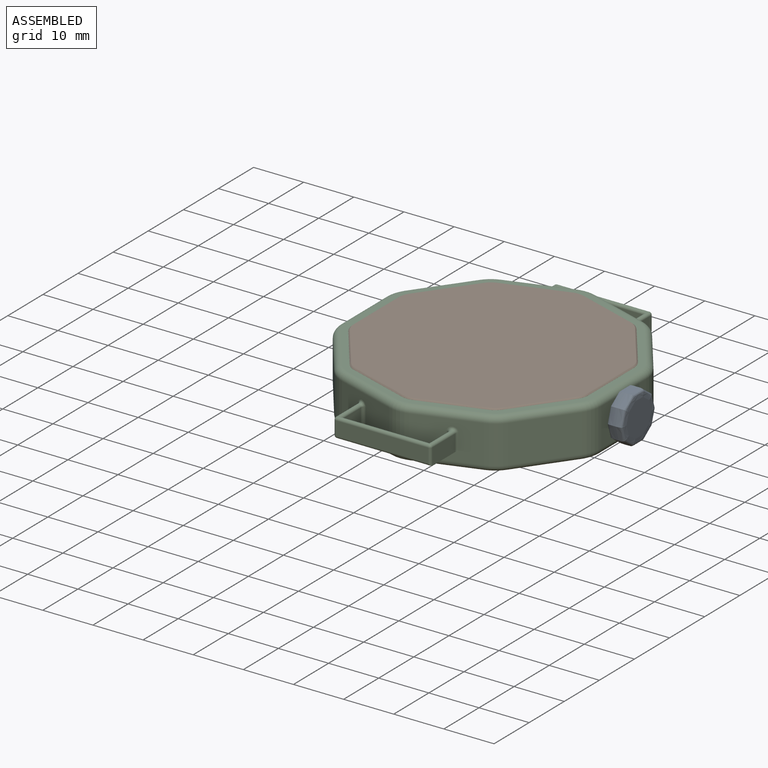
[diagram: assembled view]
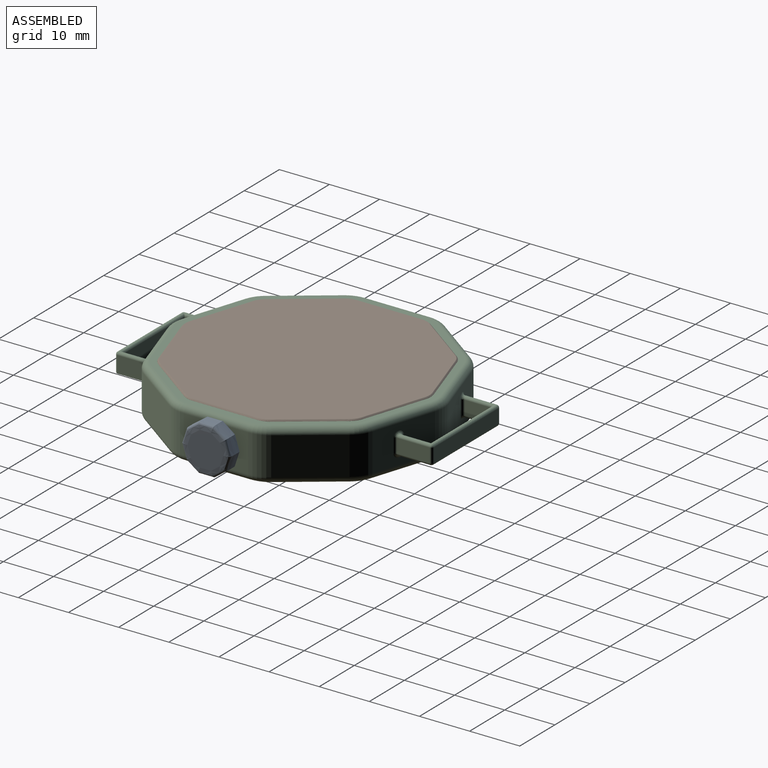
[diagram: assembled view, second angle]
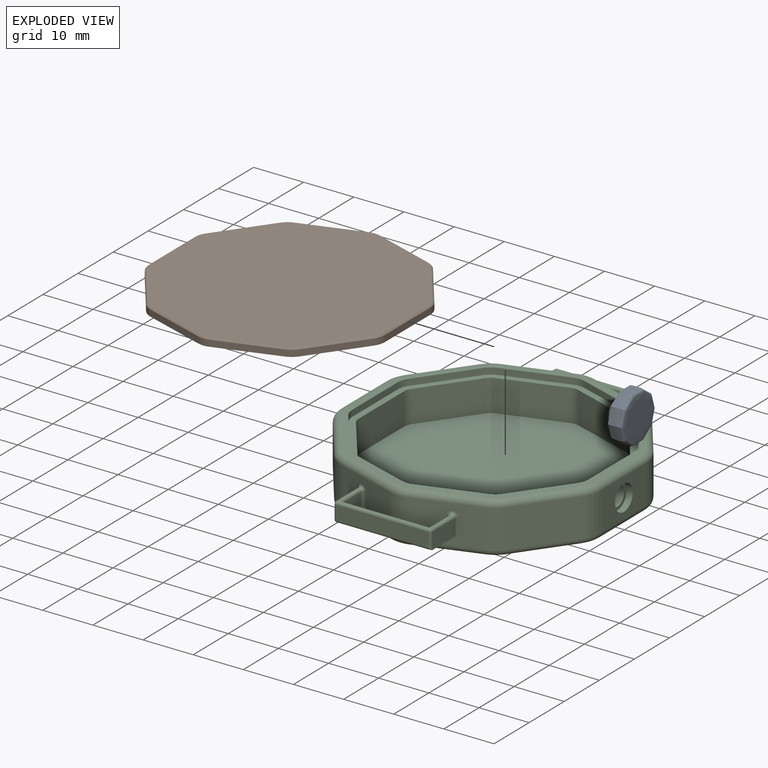
[diagram: exploded view]
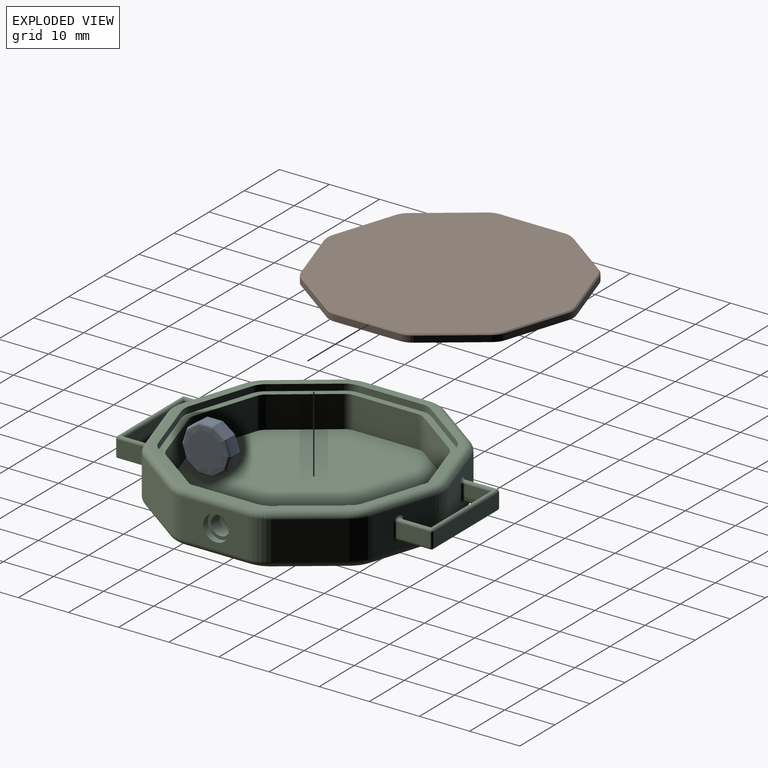
[diagram: exploded view, second angle]
ASSEMBLY  parts=3 mates=2
PART A: 34 faces, bbox 9.3x9.8x4.3 mm
  f0: plane 2.46x1.78mm, normal (0.81,0.59,0), area 1.5mm2, adj f1,f9,f19,f29
  f1: plane 2.89x0.94mm, normal (0.31,0.95,0), area 1.5mm2, adj f0,f2,f17,f27
  f2: plane 2.89x0.94mm, normal (-0.31,0.95,0), area 1.5mm2, adj f1,f3,f15,f25
  f3: plane 2.46x1.78mm, normal (-0.81,0.59,0), area 1.5mm2, adj f2,f4,f14,f24
  f4: plane 3.04x0.48mm, normal (-1,0,0), area 1.5mm2, adj f3,f5,f16,f26
  f5: plane 2.46x1.78mm, normal (-0.81,-0.59,0), area 1.5mm2, adj f4,f6,f18,f28
  f6: plane 2.89x0.94mm, normal (-0.31,-0.95,0), area 1.5mm2, adj f5,f7,f20,f30
  f7: plane 2.89x0.94mm, normal (0.31,-0.95,0), area 1.5mm2, adj f6,f8,f22,f32
  f8: plane 2.46x1.78mm, normal (0.81,-0.59,0), area 1.5mm2, adj f7,f9,f23,f33
  f9: plane 3.04x0.48mm, normal (1,0,0), area 1.5mm2, adj f0,f8,f21,f31
  f10: plane 7.16x6.8mm, normal (0,0,1), area 37.6mm2, adj f14,f15,f16,f17,f18,f19,f20,f21
  f11: plane 7.16x6.8mm, normal (0,0,-1), area 17.4mm2, adj f12,f24,f25,f26,f27,f28,f29,f30
  f12: cylinder r=2.54mm len=5.07mm, axis (0,0,1), area 20.2mm2, adj f11,f13
  f13: plane 5.07x5.07mm, normal (0,0,-1), area 20.2mm2, adj f12
  f14: bspline ~3.2x2.81mm, area 5.9mm2, adj f3,f10,f15,f16
  f15: bspline ~3.28x2.15mm, area 5.9mm2, adj f2,f10,f14,f17
  f16: bspline ~3.34x1.27mm, area 5.9mm2, adj f4,f10,f14,f18
  f17: bspline ~3.28x2.15mm, area 5.9mm2, adj f1,f10,f15,f19
  f18: bspline ~3.2x2.81mm, area 5.9mm2, adj f5,f10,f16,f20
  f19: bspline ~3.2x2.81mm, area 5.9mm2, adj f0,f10,f17,f21
  f20: bspline ~3.28x2.15mm, area 5.9mm2, adj f6,f10,f18,f22
  f21: bspline ~3.34x1.27mm, area 5.9mm2, adj f9,f10,f19,f23
  f22: bspline ~3.28x2.15mm, area 5.9mm2, adj f7,f10,f20,f23
  f23: bspline ~3.2x2.81mm, area 5.9mm2, adj f8,f10,f21,f22
  f24: bspline ~3.2x2.81mm, area 6.1mm2, adj f3,f11,f25,f26
  f25: bspline ~3.28x2.15mm, area 6.1mm2, adj f2,f11,f24,f27
  f26: bspline ~3.34x1.27mm, area 6.1mm2, adj f4,f11,f24,f28
  f27: bspline ~3.28x2.15mm, area 6.1mm2, adj f1,f11,f25,f29
  f28: bspline ~3.2x2.81mm, area 6.1mm2, adj f5,f11,f26,f30
  f29: bspline ~3.2x2.81mm, area 6.1mm2, adj f0,f11,f27,f31
  f30: bspline ~3.28x2.15mm, area 6.1mm2, adj f6,f11,f28,f32
  f31: bspline ~3.34x1.27mm, area 6.1mm2, adj f9,f11,f29,f33
  f32: bspline ~3.28x2.15mm, area 6.1mm2, adj f7,f11,f30,f33
  f33: bspline ~3.2x2.81mm, area 6.1mm2, adj f8,f11,f31,f32
PART B: 42 faces, bbox 47.1x49.3x1.5 mm
  f0: plane 10.38x7.54mm, normal (0.81,-0.59,0), area 16.3mm2, adj f9,f10,f20,f40
  f1: plane 12.2x3.96mm, normal (0.31,-0.95,0), area 16.3mm2, adj f10,f11,f20,f39
  f2: plane 12.2x3.96mm, normal (-0.31,-0.95,0), area 16.3mm2, adj f11,f12,f20,f35
  f3: plane 10.38x7.54mm, normal (-0.81,-0.59,0), area 16.3mm2, adj f12,f13,f20,f31
  f4: plane 12.83x1.27mm, normal (-1,0,0), area 16.3mm2, adj f13,f14,f20,f27
  f5: plane 10.38x7.54mm, normal (-0.81,0.59,0), area 16.3mm2, adj f14,f15,f20,f23
  f6: plane 12.2x3.96mm, normal (-0.31,0.95,0), area 16.3mm2, adj f15,f16,f20,f24
  f7: plane 12.2x3.96mm, normal (0.31,0.95,0), area 16.3mm2, adj f16,f17,f20,f28
  f8: plane 10.38x7.54mm, normal (0.81,0.59,0), area 16.3mm2, adj f17,f18,f20,f32
  f9: cylinder r=3.81mm len=2.24mm, axis (0,0,1), area 3mm2, adj f0,f19,f20,f38
  f10: cylinder r=3.81mm len=1.91mm, axis (0,0,1), area 3mm2, adj f0,f1,f20,f41
  f11: cylinder r=3.81mm len=2.35mm, axis (0,0,1), area 3mm2, adj f1,f2,f20,f37
  f12: cylinder r=3.81mm len=1.91mm, axis (0,0,1), area 3mm2, adj f2,f3,f20,f33
  f13: cylinder r=3.81mm len=2.24mm, axis (0,0,1), area 3mm2, adj f3,f4,f20,f29
  f14: cylinder r=3.81mm len=2.24mm, axis (0,0,1), area 3mm2, adj f4,f5,f20,f25
  f15: cylinder r=3.81mm len=1.91mm, axis (0,0,1), area 3mm2, adj f5,f6,f20,f22
  f16: cylinder r=3.81mm len=2.35mm, axis (0,0,1), area 3mm2, adj f6,f7,f20,f26
  f17: cylinder r=3.81mm len=1.91mm, axis (0,0,1), area 3mm2, adj f7,f8,f20,f30
  f18: cylinder r=3.81mm len=2.24mm, axis (0,0,1), area 3mm2, adj f8,f19,f20,f34
  f19: plane 12.83x1.27mm, normal (1,0,0), area 16.3mm2, adj f9,f18,f20,f36
  f20: plane 49.13x47.1mm, normal (0,0,-1), area 1800.4mm2, adj f0,f1,f2,f3,f4,f5,f6,f7
  f21: plane 48.78x46.61mm, normal (0,0,1), area 1761.9mm2, adj f22,f23,f24,f25,f26,f27,f28,f29
  f22: bspline ~1.98x1.53mm, area 0.8mm2, adj f15,f21,f23,f24
  f23: bspline ~10.53x7.75mm, area 4.7mm2, adj f5,f21,f22,f25
  f24: bspline ~12.28x4.21mm, area 4.7mm2, adj f6,f21,f22,f26
  f25: bspline ~2.24x0.93mm, area 0.8mm2, adj f14,f21,f23,f27
  f26: bspline ~2.35x0.49mm, area 0.8mm2, adj f16,f21,f24,f28
  f27: bspline ~12.83x0.25mm, area 4.7mm2, adj f4,f21,f25,f29
  f28: bspline ~12.28x4.21mm, area 4.7mm2, adj f7,f21,f26,f30
  f29: bspline ~2.24x0.93mm, area 0.8mm2, adj f13,f21,f27,f31
  f30: bspline ~1.98x1.53mm, area 0.8mm2, adj f17,f21,f28,f32
  f31: bspline ~10.53x7.75mm, area 4.7mm2, adj f3,f21,f29,f33
  f32: bspline ~10.53x7.75mm, area 4.7mm2, adj f8,f21,f30,f34
  f33: bspline ~1.98x1.53mm, area 0.8mm2, adj f12,f21,f31,f35
  f34: bspline ~2.24x0.93mm, area 0.8mm2, adj f18,f21,f32,f36
  f35: bspline ~12.28x4.21mm, area 4.7mm2, adj f2,f21,f33,f37
  f36: bspline ~12.83x0.25mm, area 4.7mm2, adj f19,f21,f34,f38
  f37: bspline ~2.35x0.49mm, area 0.8mm2, adj f11,f21,f35,f39
  f38: bspline ~2.24x0.93mm, area 0.8mm2, adj f9,f21,f36,f40
  f39: bspline ~12.28x4.21mm, area 4.7mm2, adj f1,f21,f37,f41
  f40: bspline ~10.53x7.75mm, area 4.7mm2, adj f0,f21,f38,f41
  f41: bspline ~1.98x1.53mm, area 0.8mm2, adj f10,f21,f39,f40
PART C: 158 faces, bbox 53.2x63.3x10.2 mm
  f0: plane 12.2x7.62mm, normal (-0.31,0.95,0), area 88.4mm2, adj f13,f14,f36,f55,f138,f139,f140,f141
  f1: plane 12.2x7.62mm, normal (0.31,0.95,0), area 88.4mm2, adj f12,f13,f40,f59,f152,f153,f156,f157
  f2: plane 10.38x7.62mm, normal (0.81,0.59,0), area 97.7mm2, adj f12,f21,f39,f60
  f3: plane 10.38x7.62mm, normal (-0.81,0.59,0), area 97.7mm2, adj f14,f15,f32,f51
  f4: plane 12.83x7.62mm, normal (-1,0,0), area 97.7mm2, adj f15,f16,f28,f47
  f5: plane 10.38x7.62mm, normal (-0.81,-0.59,0), area 97.7mm2, adj f16,f17,f24,f43
  f6: plane 12.2x7.62mm, normal (-0.31,-0.95,0), area 88.1mm2, adj f17,f18,f23,f44,f131,f133,f135,f136
  f7: plane 12.2x7.62mm, normal (0.31,-0.95,0), area 89mm2, adj f18,f19,f27,f48,f113,f120,f121,f122
  f8: plane 10.38x7.62mm, normal (0.81,-0.59,0), area 97.7mm2, adj f19,f20,f31,f52
  f9: plane 12.83x7.62mm, normal (1,0,0), area 77.5mm2, adj f20,f21,f35,f56,f106
  f10: plane 51.67x49.64mm, normal (0,0,1), area 198.4mm2, adj f22,f23,f24,f25,f26,f27,f28,f29
  f11: plane 51.67x49.64mm, normal (0,0,-1), area 1998.7mm2, adj f42,f43,f44,f45,f46,f47,f48,f49
  f12: cylinder r=6.35mm len=7.62mm, axis (0,0,-1), area 30.4mm2, adj f1,f2,f41,f61
  f13: cylinder r=6.35mm len=7.62mm, axis (0,0,-1), area 30.4mm2, adj f0,f1,f38,f57
  f14: cylinder r=6.35mm len=7.62mm, axis (0,0,-1), area 30.4mm2, adj f0,f3,f34,f53
  f15: cylinder r=6.35mm len=7.62mm, axis (0,0,-1), area 30.4mm2, adj f3,f4,f30,f49
  f16: cylinder r=6.35mm len=7.62mm, axis (0,0,-1), area 30.4mm2, adj f4,f5,f26,f45
  f17: cylinder r=6.35mm len=7.62mm, axis (0,0,-1), area 30.4mm2, adj f5,f6,f22,f42
  f18: cylinder r=6.35mm len=7.62mm, axis (0,0,-1), area 30.4mm2, adj f6,f7,f25,f46
  f19: cylinder r=6.35mm len=7.62mm, axis (0,0,-1), area 30.4mm2, adj f7,f8,f29,f50
  f20: cylinder r=6.35mm len=7.62mm, axis (0,0,-1), area 30.4mm2, adj f8,f9,f33,f54
  f21: cylinder r=6.35mm len=7.62mm, axis (0,0,-1), area 30.4mm2, adj f2,f9,f37,f58
  f22: torus R=5.08mm, axis (0,0,1), area 7.4mm2, adj f10,f17,f23,f24
  f23: cylinder r=1.27mm len=12.59mm, axis (-0.95,0.31,0), area 25.6mm2, adj f6,f10,f22,f25
  f24: cylinder r=1.27mm len=11.12mm, axis (-0.59,0.81,0), area 25.6mm2, adj f5,f10,f22,f26
  f25: torus R=5.08mm, axis (0,0,1), area 7.4mm2, adj f10,f18,f23,f27
  f26: torus R=5.08mm, axis (0,0,1), area 7.4mm2, adj f10,f16,f24,f28
  f27: cylinder r=1.27mm len=12.59mm, axis (-0.95,-0.31,0), area 25.6mm2, adj f7,f10,f25,f29
  f28: cylinder r=1.27mm len=12.83mm, axis (0,1,0), area 25.6mm2, adj f4,f10,f26,f30
  f29: torus R=5.08mm, axis (0,0,1), area 7.4mm2, adj f10,f19,f27,f31
  f30: torus R=5.08mm, axis (0,0,1), area 7.4mm2, adj f10,f15,f28,f32
  f31: cylinder r=1.27mm len=11.12mm, axis (-0.59,-0.81,0), area 25.6mm2, adj f8,f10,f29,f33
  f32: cylinder r=1.27mm len=11.12mm, axis (0.59,0.81,0), area 25.6mm2, adj f3,f10,f30,f34
  f33: torus R=5.08mm, axis (0,0,1), area 7.4mm2, adj f10,f20,f31,f35
  f34: torus R=5.08mm, axis (0,0,1), area 7.4mm2, adj f10,f14,f32,f36
  f35: cylinder r=1.27mm len=12.83mm, axis (0,-1,0), area 25.6mm2, adj f9,f10,f33,f37
  f36: cylinder r=1.27mm len=12.59mm, axis (0.95,0.31,0), area 25.6mm2, adj f0,f10,f34,f38
  f37: torus R=5.08mm, axis (0,0,1), area 7.4mm2, adj f10,f21,f35,f39
  f38: torus R=5.08mm, axis (0,0,1), area 7.4mm2, adj f10,f13,f36,f40
  f39: cylinder r=1.27mm len=11.12mm, axis (0.59,-0.81,0), area 25.6mm2, adj f2,f10,f37,f41
  f40: cylinder r=1.27mm len=12.59mm, axis (0.95,-0.31,0), area 25.6mm2, adj f1,f10,f38,f41
  f41: torus R=5.08mm, axis (0,0,1), area 7.4mm2, adj f10,f12,f39,f40
  f42: torus R=5.08mm, axis (0,0,1), area 7.4mm2, adj f11,f17,f43,f44
  f43: cylinder r=1.27mm len=11.12mm, axis (0.59,-0.81,0), area 25.6mm2, adj f5,f11,f42,f45
  f44: cylinder r=1.27mm len=12.59mm, axis (0.95,-0.31,0), area 25.6mm2, adj f6,f11,f42,f46
  f45: torus R=5.08mm, axis (0,0,1), area 7.4mm2, adj f11,f16,f43,f47
  f46: torus R=5.08mm, axis (0,0,1), area 7.4mm2, adj f11,f18,f44,f48
  f47: cylinder r=1.27mm len=12.83mm, axis (0,-1,0), area 25.6mm2, adj f4,f11,f45,f49
  f48: cylinder r=1.27mm len=12.59mm, axis (0.95,0.31,0), area 25.6mm2, adj f7,f11,f46,f50
  f49: torus R=5.08mm, axis (0,0,1), area 7.4mm2, adj f11,f15,f47,f51
  f50: torus R=5.08mm, axis (0,0,1), area 7.4mm2, adj f11,f19,f48,f52
  f51: cylinder r=1.27mm len=11.12mm, axis (-0.59,-0.81,0), area 25.6mm2, adj f3,f11,f49,f53
  f52: cylinder r=1.27mm len=11.12mm, axis (0.59,0.81,0), area 25.6mm2, adj f8,f11,f50,f54
  f53: torus R=5.08mm, axis (0,0,1), area 7.4mm2, adj f11,f14,f51,f55
  f54: torus R=5.08mm, axis (0,0,1), area 7.4mm2, adj f11,f20,f52,f56
  f55: cylinder r=1.27mm len=12.59mm, axis (-0.95,-0.31,0), area 25.6mm2, adj f0,f11,f53,f57
  f56: cylinder r=1.27mm len=12.83mm, axis (0,1,0), area 25.6mm2, adj f9,f11,f54,f58
  f57: torus R=5.08mm, axis (0,0,1), area 7.4mm2, adj f11,f13,f55,f59
  f58: torus R=5.08mm, axis (0,0,1), area 7.4mm2, adj f11,f21,f56,f60
  f59: cylinder r=1.27mm len=12.59mm, axis (-0.95,0.31,0), area 25.6mm2, adj f1,f11,f57,f61
  f60: cylinder r=1.27mm len=11.12mm, axis (-0.59,0.81,0), area 25.6mm2, adj f2,f11,f58,f61
  f61: torus R=5.08mm, axis (0,0,1), area 7.4mm2, adj f11,f12,f59,f60
  f62: plane 49.13x47.1mm, normal (0,0,1), area 188.2mm2, adj f63,f64,f65,f66,f67,f68,f69,f70
  f63: cylinder r=3.81mm len=2.24mm, axis (0,0,1), area 3mm2, adj f10,f62,f64,f82
  f64: plane 12.83x1.27mm, normal (-1,0,0), area 16.3mm2, adj f10,f62,f63,f65
  f65: cylinder r=3.81mm len=2.24mm, axis (0,0,1), area 3mm2, adj f10,f62,f64,f66
  f66: plane 10.38x7.54mm, normal (-0.81,-0.59,0), area 16.3mm2, adj f10,f62,f65,f67
  f67: cylinder r=3.81mm len=1.91mm, axis (0,0,1), area 3mm2, adj f10,f62,f66,f68
  f68: plane 12.2x3.96mm, normal (-0.31,-0.95,0), area 16.3mm2, adj f10,f62,f67,f69
  f69: cylinder r=3.81mm len=2.35mm, axis (0,0,1), area 3mm2, adj f10,f62,f68,f70
  f70: plane 12.2x3.96mm, normal (0.31,-0.95,0), area 16.3mm2, adj f10,f62,f69,f71
  f71: cylinder r=3.81mm len=1.91mm, axis (0,0,1), area 3mm2, adj f10,f62,f70,f72
  f72: plane 10.38x7.54mm, normal (0.81,-0.59,0), area 16.3mm2, adj f10,f62,f71,f73
  f73: cylinder r=3.81mm len=2.24mm, axis (0,0,1), area 3mm2, adj f10,f62,f72,f74
  f74: plane 12.83x1.27mm, normal (1,0,0), area 16.3mm2, adj f10,f62,f73,f75
  f75: cylinder r=3.81mm len=2.24mm, axis (0,0,1), area 3mm2, adj f10,f62,f74,f76
  f76: plane 10.38x7.54mm, normal (0.81,0.59,0), area 16.3mm2, adj f10,f62,f75,f77
  f77: cylinder r=3.81mm len=1.91mm, axis (0,0,1), area 3mm2, adj f10,f62,f76,f78
  f78: plane 12.2x3.96mm, normal (0.31,0.95,0), area 16.3mm2, adj f10,f62,f77,f79
  f79: cylinder r=3.81mm len=2.35mm, axis (0,0,1), area 3mm2, adj f10,f62,f78,f80
  f80: plane 12.2x3.96mm, normal (-0.31,0.95,0), area 16.3mm2, adj f10,f62,f79,f81
  f81: cylinder r=3.81mm len=1.91mm, axis (0,0,1), area 3mm2, adj f10,f62,f80,f82
  f82: plane 10.38x7.54mm, normal (-0.81,0.59,0), area 16.3mm2, adj f10,f62,f63,f81
  f83: plane 46.59x44.56mm, normal (0,0,1), area 1612.1mm2, adj f84,f85,f86,f87,f88,f89,f90,f91
  f84: plane 12.2x6.35mm, normal (-0.31,-0.95,0), area 81.5mm2, adj f62,f83,f85,f103
  f85: cylinder r=2.54mm len=6.35mm, axis (0,0,1), area 10.1mm2, adj f62,f83,f84,f86
  f86: plane 10.38x7.54mm, normal (-0.81,-0.59,0), area 81.5mm2, adj f62,f83,f85,f87
  f87: cylinder r=2.54mm len=6.35mm, axis (0,0,1), area 10.1mm2, adj f62,f83,f86,f88
  f88: plane 12.83x6.35mm, normal (-1,0,0), area 70.1mm2, adj f62,f83,f87,f89,f104
  f89: cylinder r=2.54mm len=6.35mm, axis (0,0,1), area 10.1mm2, adj f62,f83,f88,f90
  f90: plane 10.38x7.54mm, normal (-0.81,0.59,0), area 81.5mm2, adj f62,f83,f89,f91
  f91: cylinder r=2.54mm len=6.35mm, axis (0,0,1), area 10.1mm2, adj f62,f83,f90,f92
  f92: plane 12.2x6.35mm, normal (-0.31,0.95,0), area 81.5mm2, adj f62,f83,f91,f93
  f93: cylinder r=2.54mm len=6.35mm, axis (0,0,1), area 10.1mm2, adj f62,f83,f92,f94
  f94: plane 12.2x6.35mm, normal (0.31,0.95,0), area 81.5mm2, adj f62,f83,f93,f95
  f95: cylinder r=2.54mm len=6.35mm, axis (0,0,1), area 10.1mm2, adj f62,f83,f94,f96
  f96: plane 10.38x7.54mm, normal (0.81,0.59,0), area 81.5mm2, adj f62,f83,f95,f97
  f97: cylinder r=2.54mm len=6.35mm, axis (0,0,1), area 10.1mm2, adj f62,f83,f96,f98
  f98: plane 12.83x6.35mm, normal (1,0,0), area 81.5mm2, adj f62,f83,f97,f99
  f99: cylinder r=2.54mm len=6.35mm, axis (0,0,1), area 10.1mm2, adj f62,f83,f98,f100
  f100: plane 10.38x7.54mm, normal (0.81,-0.59,0), area 81.5mm2, adj f62,f83,f99,f101
  f101: cylinder r=2.54mm len=6.35mm, axis (0,0,1), area 10.1mm2, adj f62,f83,f100,f102
  f102: plane 12.2x6.35mm, normal (0.31,-0.95,0), area 81.5mm2, adj f62,f83,f101,f103
  f103: cylinder r=2.54mm len=6.35mm, axis (0,0,1), area 10.1mm2, adj f62,f83,f84,f102
  f104: cylinder r=1.91mm len=3.81mm, axis (1,0,0), area 30.4mm2, adj f88,f105
  f105: plane 5.08x5.08mm, normal (1,0,0), area 8.9mm2, adj f104,f106
  f106: cylinder r=2.54mm len=5.08mm, axis (1,0,0), area 20.3mm2, adj f9,f105
  f107: plane 17.36x3.3mm, normal (0,1,0), area 57.3mm2, adj f108,f112,f113,f125
  f108: plane 5.32x3.3mm, normal (1,0,0), area 17.6mm2, adj f107,f113,f128,f135
  f109: plane 6.49x2.79mm, normal (-1,0,0), area 18.1mm2, adj f128,f129,f133,f134
  f110: plane 18.38x2.79mm, normal (0,-1,0), area 51.4mm2, adj f125,f127,f129,f130
  f111: plane 6.49x3.3mm, normal (1,0,0), area 21.4mm2, adj f113,f120,f123,f127
  f112: plane 5.32x3.3mm, normal (-1,0,0), area 17.6mm2, adj f107,f113,f121,f123
  f113: plane 19.24x6.97mm, normal (0,0,-1), area 18.8mm2, adj f7,f107,f108,f111,f112,f120,f121,f130
  f114: plane 5.32x2.79mm, normal (1,0,0), area 14.9mm2, adj f115,f140,f144,f145
  f115: plane 17.36x2.79mm, normal (0,-1,0), area 48.5mm2, adj f114,f116,f149,f150
  f116: plane 5.32x2.79mm, normal (-1,0,0), area 14.9mm2, adj f115,f154,f155,f157
  f117: plane 6.49x2.79mm, normal (1,0,0), area 18.1mm2, adj f147,f152,f154,f155
  f118: plane 18.38x2.79mm, normal (0,1,0), area 51.4mm2, adj f142,f147,f149,f150
  f119: plane 6.49x2.79mm, normal (-1,0,0), area 18.1mm2, adj f138,f142,f144,f145
  f120: cylinder r=0.51mm len=3.3mm, axis (0,0,-1), area 2.1mm2, adj f7,f111,f113,f122
  f121: cylinder r=0.51mm len=3.3mm, axis (0,0,1), area 3.2mm2, adj f7,f112,f113,f122
  f122: bspline ~2.03x1.14mm, area 1.8mm2, adj f7,f120,f121,f123
  f123: cylinder r=0.51mm len=6.49mm, axis (0,-1,0), area 9.6mm2, adj f111,f112,f122,f124,f125
  f124: sphere r=0.51mm, area 0.4mm2, adj f123,f125,f127
  f125: cylinder r=0.51mm len=18.38mm, axis (-1,0,0), area 28.8mm2, adj f107,f110,f123,f124,f126,f128
  f126: sphere r=0.51mm, area 0.4mm2, adj f125,f128,f129
  f127: cylinder r=0.51mm len=3.3mm, axis (0,0,1), area 2.5mm2, adj f110,f111,f124,f130
  f128: cylinder r=0.51mm len=6.49mm, axis (0,1,0), area 9.6mm2, adj f108,f109,f125,f126,f131
  f129: cylinder r=0.51mm len=2.79mm, axis (0,0,-1), area 2.2mm2, adj f109,f110,f126,f132
  f130: cylinder r=0.51mm len=18.89mm, axis (1,0,0), area 14.9mm2, adj f110,f113,f127,f132
  f131: bspline ~2.03x1.14mm, area 1.8mm2, adj f6,f128,f133,f135
  f132: sphere r=0.51mm, area 0.4mm2, adj f129,f130,f134
  f133: cylinder r=0.51mm len=2.79mm, axis (0,0,1), area 1.8mm2, adj f6,f109,f131,f136
  f134: cylinder r=0.51mm len=6.49mm, axis (0,-1,0), area 5.1mm2, adj f109,f113,f132,f136
  f135: cylinder r=0.51mm len=3.81mm, axis (0,0,-1), area 3.3mm2, adj f6,f108,f113,f131,f137
  f136: bspline ~1.19x1.19mm, area 0.8mm2, adj f6,f133,f134,f137
  f137: cylinder r=0.51mm len=1.17mm, axis (-0.95,0.31,0), area 0.6mm2, adj f6,f113,f135,f136
  f138: cylinder r=0.51mm len=2.79mm, axis (0,0,-1), area 1.8mm2, adj f0,f119,f139,f141
  f139: bspline ~2.03x1.14mm, area 1.8mm2, adj f0,f138,f140,f144
  f140: cylinder r=0.51mm len=2.79mm, axis (0,0,1), area 2.7mm2, adj f0,f114,f139,f141
  f141: bspline ~2.03x1.14mm, area 1.8mm2, adj f0,f138,f140,f145
  f142: cylinder r=0.51mm len=2.79mm, axis (0,0,1), area 2.2mm2, adj f118,f119,f143,f146
  f143: sphere r=0.51mm, area 0.4mm2, adj f142,f144,f149
  f144: cylinder r=0.51mm len=6.49mm, axis (0,-1,0), area 9.6mm2, adj f114,f119,f139,f143,f149
  f145: cylinder r=0.51mm len=6.49mm, axis (0,1,0), area 9.6mm2, adj f114,f119,f141,f146,f150
  f146: sphere r=0.51mm, area 0.4mm2, adj f142,f145,f150
  f147: cylinder r=0.51mm len=2.79mm, axis (0,0,-1), area 2.2mm2, adj f117,f118,f148,f151
  f148: sphere r=0.51mm, area 0.4mm2, adj f147,f149,f154
  f149: cylinder r=0.51mm len=18.38mm, axis (-1,0,0), area 28.8mm2, adj f115,f118,f143,f144,f148,f154
  f150: cylinder r=0.51mm len=18.38mm, axis (1,0,0), area 28.8mm2, adj f115,f118,f145,f146,f151,f155
  f151: sphere r=0.51mm, area 0.4mm2, adj f147,f150,f155
  f152: cylinder r=0.51mm len=2.79mm, axis (0,0,1), area 1.8mm2, adj f1,f117,f153,f156
  f153: bspline ~2.03x1.14mm, area 1.8mm2, adj f1,f152,f154,f157
  f154: cylinder r=0.51mm len=6.49mm, axis (0,1,0), area 9.6mm2, adj f116,f117,f148,f149,f153
  f155: cylinder r=0.51mm len=6.49mm, axis (0,-1,0), area 9.6mm2, adj f116,f117,f150,f151,f156
  f156: bspline ~2.03x1.14mm, area 1.8mm2, adj f1,f152,f155,f157
  f157: cylinder r=0.51mm len=2.79mm, axis (0,0,-1), area 2.7mm2, adj f1,f116,f153,f156
PLACE A rot(axis=(0,1,0),90deg) t=(60.67,-31.11,-4.34)mm
PLACE B rot(axis=(-0.38,0.66,0.64),0deg) t=(34.58,-31.11,4.55)mm
PLACE C rot(axis=(-0.38,0.66,0.64),0deg) t=(34.58,-31.11,-4.34)mm
MATE revolute A.f12 <-> C.f104  axis (1,0,0) through (60.04,-31.11,-4.34)mm
MATE fastened B.f19 <-> C.f64  axis (1,0,0) through (58.13,-24.7,0.1)mm
